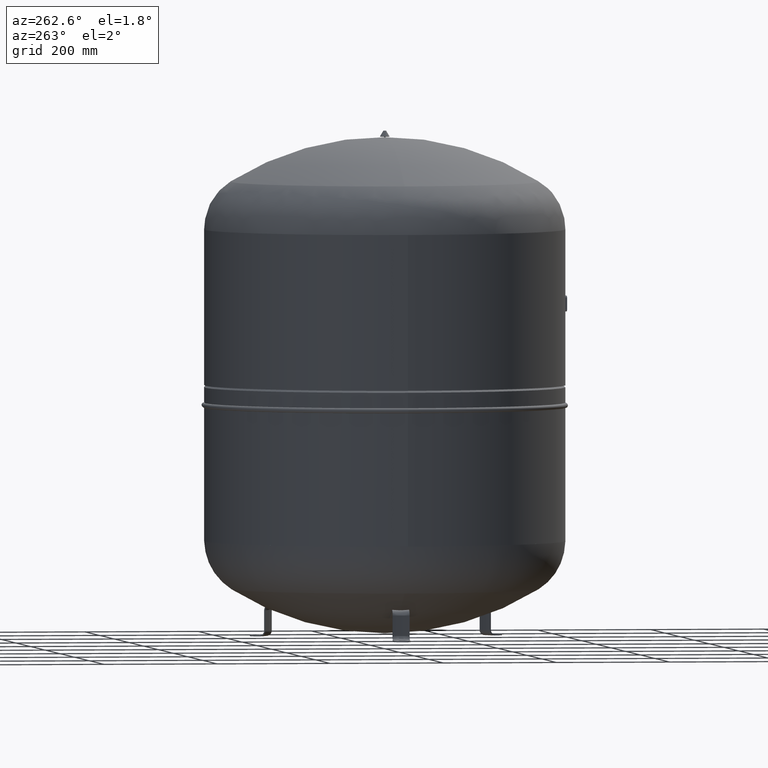
[diagram: clean part render]
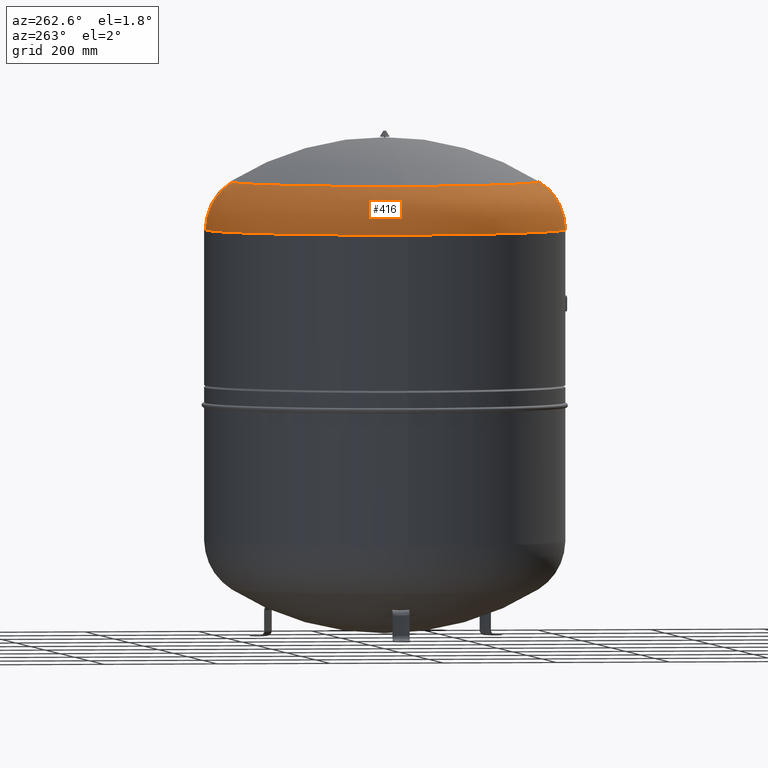
[diagram: same view with one face highlighted and labeled with its STEP entity id]
A machine part, auxiliary view. The second image highlights one B-rep face of the part: STEP entity #416.
In plain terms, the highlighted face is a freeform B-spline surface patch.
Its self-contained STEP definition (entity closure, byte-faithful):
#153=CARTESIAN_POINT('',(-317.00000000000006,-2.971473E-014,716.24055062737148));
#154=VERTEX_POINT('',#153);
#178=CARTESIAN_POINT('',(9.762260E-031,-317.00000000000011,716.24055062737159));
#179=VERTEX_POINT('',#178);
#187=CARTESIAN_POINT('',(-1.556097E-014,-2.971473E-014,716.24055062737136));
#188=DIRECTION('',(0.0,0.0,1.0));
#189=DIRECTION('',(-1.0,0.0,0.0));
#190=AXIS2_PLACEMENT_3D('',#187,#188,#189);
#191=CIRCLE('',#190,317.00000000000006);
#192=EDGE_CURVE('',#154,#179,#191,.T.);
#250=CARTESIAN_POINT('',(8.065826E-015,-270.63902439024383,800.08643968129752));
#251=VERTEX_POINT('',#250);
#252=CARTESIAN_POINT('',(0.0,-218.00000000000003,716.24055062737148));
#253=DIRECTION('',(-1.0,0.0,0.0));
#254=DIRECTION('',(0.0,-1.0,0.0));
#255=AXIS2_PLACEMENT_3D('',#252,#253,#254);
#256=CIRCLE('',#255,99.0);
#257=EDGE_CURVE('',#179,#251,#256,.T.);
#260=CARTESIAN_POINT('',(-3.882002E-014,317.0,716.24055062737114));
#261=VERTEX_POINT('',#260);
#269=CARTESIAN_POINT('',(-2.507680E-014,270.63902439024383,800.08643968129752));
#270=VERTEX_POINT('',#269);
#271=CARTESIAN_POINT('',(-2.669642E-014,217.99999999999997,716.24055062737125));
#272=DIRECTION('',(1.0,0.0,0.0));
#273=DIRECTION('',(0.0,1.0,0.0));
#274=AXIS2_PLACEMENT_3D('',#271,#272,#273);
#275=CIRCLE('',#274,99.0);
#276=EDGE_CURVE('',#261,#270,#275,.T.);
#311=CARTESIAN_POINT('',(-270.63902439024383,-1.431249E-014,800.08643968129763));
#312=VERTEX_POINT('',#311);
#320=CARTESIAN_POINT('',(-7.495146E-015,-1.431249E-014,800.08643968129752));
#321=DIRECTION('',(0.0,0.0,1.0));
#322=DIRECTION('',(-1.0,0.0,0.0));
#323=AXIS2_PLACEMENT_3D('',#320,#321,#322);
#324=CIRCLE('',#323,270.63902439024383);
#325=EDGE_CURVE('',#312,#251,#324,.T.);
#338=CARTESIAN_POINT('',(-7.495146E-015,-1.431249E-014,800.08643968129752));
#339=DIRECTION('',(0.0,0.0,1.0));
#340=DIRECTION('',(-1.0,0.0,0.0));
#341=AXIS2_PLACEMENT_3D('',#338,#339,#340);
#342=CIRCLE('',#341,270.63902439024383);
#343=EDGE_CURVE('',#270,#312,#342,.T.);
#349=CARTESIAN_POINT('',(-1.457282E-014,119.0,716.24055062737091));
#350=CARTESIAN_POINT('',(-5.049191E-015,118.99999999999972,815.24055062737125));
#351=CARTESIAN_POINT('',(-1.717279E-014,217.99999999999997,815.24055062737125));
#352=CARTESIAN_POINT('',(-2.929640E-014,317.00000000000023,815.24055062737125));
#353=CARTESIAN_POINT('',(-3.882002E-014,316.99999999999994,716.24055062737091));
#354=CARTESIAN_POINT('',(-119.00000000000001,118.99999999999994,716.24055062737091));
#355=CARTESIAN_POINT('',(-118.99999999999969,118.99999999999966,815.24055062737125));
#356=CARTESIAN_POINT('',(-217.99999999999994,217.99999999999989,815.24055062737125));
#357=CARTESIAN_POINT('',(-317.00000000000023,317.00000000000011,815.24055062737125));
#358=CARTESIAN_POINT('',(-317.0,316.99999999999989,716.24055062737091));
#359=CARTESIAN_POINT('',(-119.00000000000003,-4.428754E-014,716.24055062737091));
#360=CARTESIAN_POINT('',(-118.99999999999972,-2.610154E-014,815.24055062737125));
#361=CARTESIAN_POINT('',(-217.99999999999997,-3.822514E-014,815.24055062737125));
#362=CARTESIAN_POINT('',(-317.00000000000023,-5.034875E-014,815.24055062737125));
#363=CARTESIAN_POINT('',(-317.0,-6.853475E-014,716.24055062737102));
#364=CARTESIAN_POINT('',(-118.99999999999999,-119.00000000000004,716.24055062737091));
#365=CARTESIAN_POINT('',(-118.99999999999966,-118.99999999999972,815.24055062737125));
#366=CARTESIAN_POINT('',(-217.99999999999989,-217.99999999999994,815.24055062737125));
#367=CARTESIAN_POINT('',(-317.00000000000011,-317.00000000000023,815.24055062737125));
#368=CARTESIAN_POINT('',(-316.99999999999989,-317.0,716.24055062737114));
#369=CARTESIAN_POINT('',(1.457282E-014,-119.00000000000006,716.24055062737091));
#370=CARTESIAN_POINT('',(2.409644E-014,-118.99999999999973,815.24055062737125));
#371=CARTESIAN_POINT('',(3.622004E-014,-217.99999999999997,815.24055062737125));
#372=CARTESIAN_POINT('',(4.834365E-014,-317.00000000000023,815.24055062737125));
#373=CARTESIAN_POINT('',(3.882002E-014,-317.00000000000006,716.24055062737114));
#374=CARTESIAN_POINT('',(119.00000000000001,-119.00000000000001,716.24055062737091));
#375=CARTESIAN_POINT('',(118.99999999999972,-118.99999999999969,815.24055062737125));
#376=CARTESIAN_POINT('',(217.99999999999994,-217.99999999999989,815.24055062737125));
#377=CARTESIAN_POINT('',(317.00000000000023,-317.00000000000017,815.24055062737125));
#378=CARTESIAN_POINT('',(317.0,-316.99999999999994,716.24055062737114));
#379=CARTESIAN_POINT('',(119.00000000000003,-1.514191E-014,716.24055062737091));
#380=CARTESIAN_POINT('',(118.99999999999973,3.044092E-015,815.24055062737125));
#381=CARTESIAN_POINT('',(217.99999999999997,1.516769E-014,815.24055062737125));
#382=CARTESIAN_POINT('',(317.00000000000023,2.729130E-014,815.24055062737125));
#383=CARTESIAN_POINT('',(317.0,9.105293E-015,716.24055062737102));
#384=CARTESIAN_POINT('',(118.99999999999999,118.99999999999999,716.24055062737091));
#385=CARTESIAN_POINT('',(118.99999999999969,118.99999999999969,815.24055062737125));
#386=CARTESIAN_POINT('',(217.99999999999989,217.99999999999994,815.24055062737125));
#387=CARTESIAN_POINT('',(317.00000000000011,317.00000000000017,815.24055062737125));
#388=CARTESIAN_POINT('',(316.99999999999989,316.99999999999994,716.24055062737091));
#389=CARTESIAN_POINT('',(-1.457282E-014,119.0,716.24055062737091));
#390=CARTESIAN_POINT('',(-5.049191E-015,118.99999999999972,815.24055062737125));
#391=CARTESIAN_POINT('',(-1.717279E-014,217.99999999999997,815.24055062737125));
#392=CARTESIAN_POINT('',(-2.929640E-014,317.00000000000023,815.24055062737125));
#393=CARTESIAN_POINT('',(-3.882002E-014,316.99999999999994,716.24055062737091));
#401=(BOUNDED_SURFACE()B_SPLINE_SURFACE(2,2,((#349,#354,#359,#364,#369,#374,#379,#384,#389),(#350,#355,#360,#365,#370,#375,#380,#385,#390),(#351,#356,#361,#366,#371,#376,#381,#386,#391),(#352,#357,#362,#367,#372,#377,#382,#387,#392),(#353,#358,#363,#368,#373,#378,#383,#388,#393)),.UNSPECIFIED.,.F.,.T.,.U.)B_SPLINE_SURFACE_WITH_KNOTS((3,2,3),(3,2,2,2,3),(-3.141592653589796,-1.570796326794897,3.192934E-015),(0.0,1.570796326794897,3.141592653589793,4.71238898038469,6.283185307179586),.UNSPECIFIED.)GEOMETRIC_REPRESENTATION_ITEM()RATIONAL_B_SPLINE_SURFACE(((1.0,0.707106781186548,1.0,0.707106781186548,1.0,0.707106781186548,1.0,0.707106781186548,1.0),(0.707106781186546,0.499999999999999,0.707106781186546,0.499999999999999,0.707106781186546,0.499999999999999,0.707106781186546,0.499999999999999,0.707106781186546),(1.0,0.707106781186548,1.0,0.707106781186548,1.0,0.707106781186548,1.0,0.707106781186548,1.0),(0.707106781186547,0.499999999999999,0.707106781186547,0.499999999999999,0.707106781186547,0.499999999999999,0.707106781186547,0.499999999999999,0.707106781186547),(1.0,0.707106781186548,1.0,0.707106781186548,1.0,0.707106781186548,1.0,0.707106781186548,1.0)))REPRESENTATION_ITEM('')SURFACE());
#402=ORIENTED_EDGE('',*,*,#257,.T.);
#403=ORIENTED_EDGE('',*,*,#325,.F.);
#404=ORIENTED_EDGE('',*,*,#343,.F.);
#405=ORIENTED_EDGE('',*,*,#276,.F.);
#406=CARTESIAN_POINT('',(-1.556097E-014,-2.971473E-014,716.24055062737136));
#407=DIRECTION('',(0.0,0.0,1.0));
#408=DIRECTION('',(-1.0,0.0,0.0));
#409=AXIS2_PLACEMENT_3D('',#406,#407,#408);
#410=CIRCLE('',#409,317.00000000000006);
#411=EDGE_CURVE('',#261,#154,#410,.T.);
#412=ORIENTED_EDGE('',*,*,#411,.T.);
#413=ORIENTED_EDGE('',*,*,#192,.T.);
#414=EDGE_LOOP('',(#402,#403,#404,#405,#412,#413));
#415=FACE_OUTER_BOUND('',#414,.T.);
#416=ADVANCED_FACE('',(#415),#401,.T.);